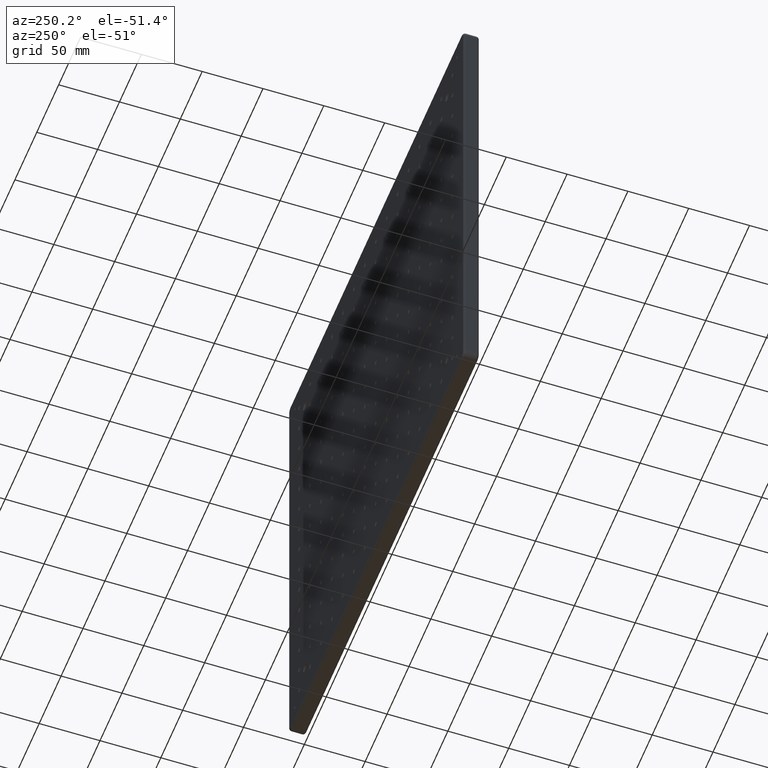
[diagram: clean part render]
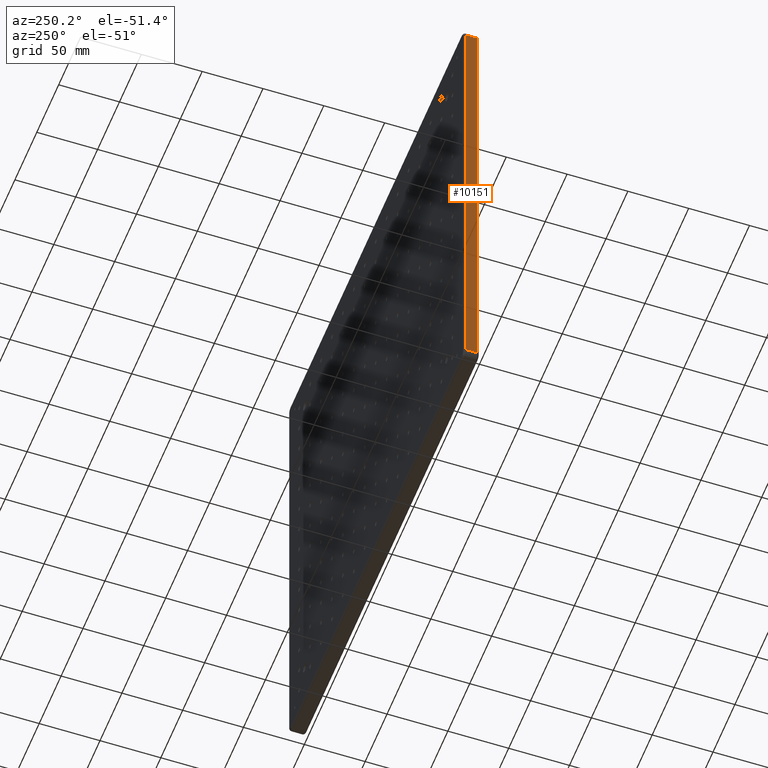
[diagram: same view with one face highlighted and labeled with its STEP entity id]
A machine part, auxiliary view. The second image highlights one B-rep face of the part: STEP entity #10151.
In plain terms, the highlighted planar face has unit normal (1, 0, -0).
Its self-contained STEP definition (entity closure, byte-faithful):
#718 = EDGE_CURVE ( 'NONE', #5551, #4787, #15212, .T. ) ;
#745 = CARTESIAN_POINT ( 'NONE',  ( -200.0000000000000000, 11.00000000000000000, -194.9999999999999700 ) ) ;
#944 = DIRECTION ( 'NONE',  ( 7.116814260417670700E-017, -0.0000000000000000000, 1.000000000000000000 ) ) ;
#1034 = CARTESIAN_POINT ( 'NONE',  ( -200.0000000000000000, 13.00000000000000000, -194.9999999999999700 ) ) ;
#1848 = ORIENTED_EDGE ( 'NONE', *, *, #718, .T. ) ;
#2001 = CARTESIAN_POINT ( 'NONE',  ( -200.0000000000000000, 13.00000000000000000, -194.9999999999999700 ) ) ;
#2179 = CARTESIAN_POINT ( 'NONE',  ( -199.9999999999999700, 2.000000000000003600, 194.9999999999999700 ) ) ;
#2827 = VERTEX_POINT ( 'NONE', #5343 ) ;
#3618 = VECTOR ( 'NONE', #944, 1000.000000000000000 ) ;
#3693 = DIRECTION ( 'NONE',  ( -7.116814260417670700E-017, -0.0000000000000000000, -1.000000000000000000 ) ) ;
#4208 = ORIENTED_EDGE ( 'NONE', *, *, #13712, .T. ) ;
#4787 = VERTEX_POINT ( 'NONE', #745 ) ;
#5343 = CARTESIAN_POINT ( 'NONE',  ( -200.0000000000000000, 2.000000000000001800, -194.9999999999999700 ) ) ;
#5352 = CARTESIAN_POINT ( 'NONE',  ( -200.0000000000000000, 2.000000000000000000, -194.9999999999999700 ) ) ;
#5551 = VERTEX_POINT ( 'NONE', #16163 ) ;
#5989 = ORIENTED_EDGE ( 'NONE', *, *, #17856, .F. ) ;
#6294 = PLANE ( 'NONE',  #16703 ) ;
#8686 = LINE ( 'NONE', #1034, #11974 ) ;
#8960 = DIRECTION ( 'NONE',  ( -7.116814260417670700E-017, 0.0000000000000000000, -1.000000000000000000 ) ) ;
#9203 = VERTEX_POINT ( 'NONE', #2179 ) ;
#10151 = ADVANCED_FACE ( 'NONE', ( #16802 ), #6294, .F. ) ;
#10164 = EDGE_LOOP ( 'NONE', ( #17721, #4208, #5989, #1848 ) ) ;
#10313 = VECTOR ( 'NONE', #3693, 1000.000000000000000 ) ;
#10457 = LINE ( 'NONE', #16487, #17345 ) ;
#10600 = DIRECTION ( 'NONE',  ( 1.000000000000000000, 0.0000000000000000000, -7.116814260417670700E-017 ) ) ;
#10836 = DIRECTION ( 'NONE',  ( -0.0000000000000000000, -1.000000000000000000, -0.0000000000000000000 ) ) ;
#11558 = LINE ( 'NONE', #5352, #3618 ) ;
#11974 = VECTOR ( 'NONE', #12346, 1000.000000000000000 ) ;
#12346 = DIRECTION ( 'NONE',  ( -0.0000000000000000000, -1.000000000000000000, -0.0000000000000000000 ) ) ;
#13712 = EDGE_CURVE ( 'NONE', #2827, #9203, #11558, .T. ) ;
#14162 = EDGE_CURVE ( 'NONE', #4787, #2827, #8686, .T. ) ;
#15212 = LINE ( 'NONE', #15937, #10313 ) ;
#15937 = CARTESIAN_POINT ( 'NONE',  ( -200.0000000000000000, 11.00000000000000000, -194.9999999999999700 ) ) ;
#16163 = CARTESIAN_POINT ( 'NONE',  ( -199.9999999999999700, 11.00000000000000000, 194.9999999999999700 ) ) ;
#16487 = CARTESIAN_POINT ( 'NONE',  ( -199.9999999999999700, 13.00000000000000000, 194.9999999999999700 ) ) ;
#16703 = AXIS2_PLACEMENT_3D ( 'NONE', #2001, #10600, #8960 ) ;
#16802 = FACE_OUTER_BOUND ( 'NONE', #10164, .T. ) ;
#17345 = VECTOR ( 'NONE', #10836, 1000.000000000000000 ) ;
#17721 = ORIENTED_EDGE ( 'NONE', *, *, #14162, .T. ) ;
#17856 = EDGE_CURVE ( 'NONE', #5551, #9203, #10457, .T. ) ;